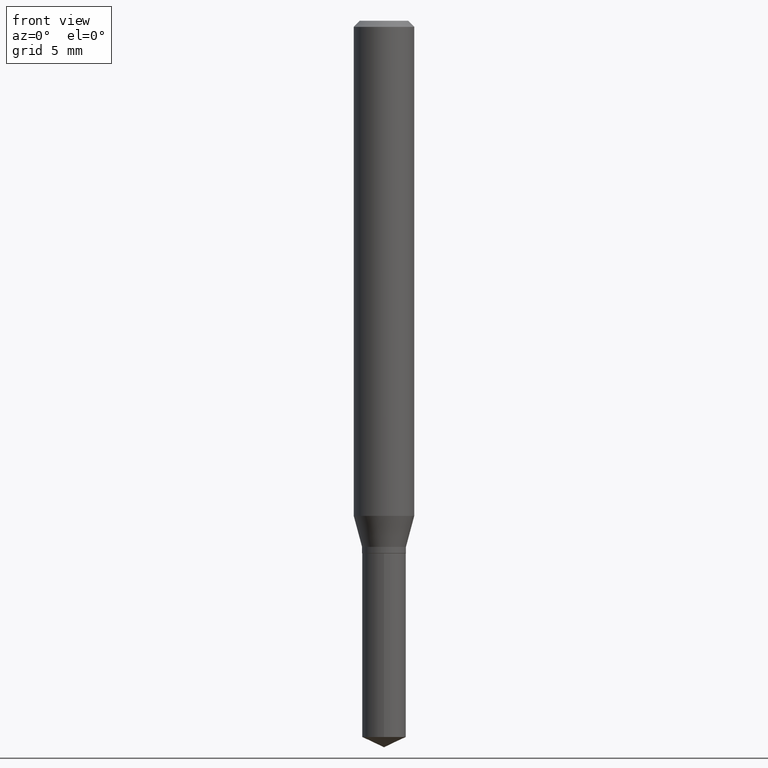
[diagram: clean part render]
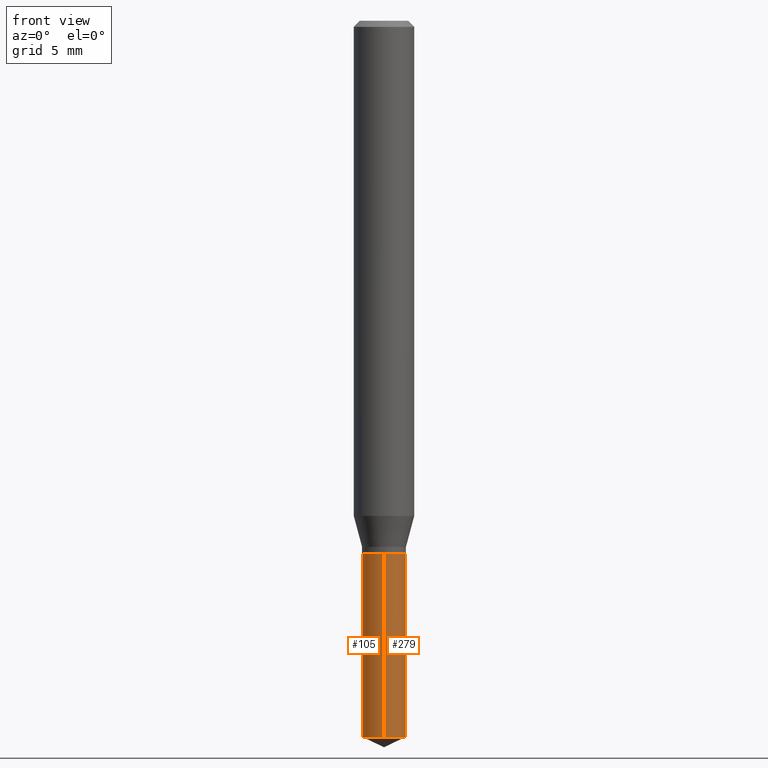
[diagram: same view with one multi-face feature highlighted, each face labeled with its STEP entity id]
A machine part, front view. The highlighted faces form ONE feature: a constant-radius fillet chain: 2 tangent blend faces with common blend radius 1.1506 mm. The faces share edges in the B-rep.
Their STEP definitions:
[1] entity #279 (Cylinder):
#5 = CARTESIAN_POINT ( 'NONE',  ( 3.218758592993522054E-16, 0.04529999999999615584, -1.100000000000000089 ) ) ;
#6 = VERTEX_POINT ( 'NONE', #390 ) ;
#55 = VECTOR ( 'NONE', #302, 39.37007874015748143 ) ;
#63 = DIRECTION ( 'NONE',  ( -2.445399690415121530E-29, 3.491580316559632610E-15, 1.000000000000000000 ) ) ;
#67 = DIRECTION ( 'NONE',  ( -6.982962677686266711E-15, -1.000000000000000000, 6.030569522437666757E-15 ) ) ;
#68 = EDGE_CURVE ( 'NONE', #298, #128, #152, .T. ) ;
#69 = DIRECTION ( 'NONE',  ( -6.982962677686266711E-15, -1.000000000000000000, 3.015284761218833379E-15 ) ) ;
#116 = LINE ( 'NONE', #5, #306 ) ;
#118 = EDGE_CURVE ( 'NONE', #291, #6, #406, .T. ) ;
#128 = VERTEX_POINT ( 'NONE', #311 ) ;
#152 = CIRCLE ( 'NONE', #415, 0.04529999999999999999 ) ;
#180 = CARTESIAN_POINT ( 'NONE',  ( 2.690015686803650369E-29, -3.840629472727460101E-15, -1.100000000000000089 ) ) ;
#203 = DIRECTION ( 'NONE',  ( -2.445399690415121810E-29, 3.491580316559632610E-15, 1.000000000000000000 ) ) ;
#211 = FACE_OUTER_BOUND ( 'NONE', #487, .T. ) ;
#229 = LINE ( 'NONE', #240, #55 ) ;
#239 = CARTESIAN_POINT ( 'NONE',  ( 2.690015686803650369E-29, -3.840629472727460101E-15, -1.100000000000000089 ) ) ;
#240 = CARTESIAN_POINT ( 'NONE',  ( -3.163282092991610146E-16, -0.04530000000000384414, -1.099999999999999867 ) ) ;
#255 = ORIENTED_EDGE ( 'NONE', *, *, #68, .F. ) ;
#279 = ADVANCED_FACE ( 'NONE', ( #211 ), #286, .T. ) ;
#286 = CYLINDRICAL_SURFACE ( 'NONE', #320, 0.04529999999999999999 ) ;
#291 = VERTEX_POINT ( 'NONE', #326 ) ;
#298 = VERTEX_POINT ( 'NONE', #324 ) ;
#302 = DIRECTION ( 'NONE',  ( -2.445399690415121810E-29, 3.491580316559632610E-15, 1.000000000000000000 ) ) ;
#306 = VECTOR ( 'NONE', #203, 39.37007874015748143 ) ;
#307 = ORIENTED_EDGE ( 'NONE', *, *, #470, .F. ) ;
#311 = CARTESIAN_POINT ( 'NONE',  ( 3.218758592993615238E-16, 0.04529999999999615584, -1.100000000000000089 ) ) ;
#320 = AXIS2_PLACEMENT_3D ( 'NONE', #180, #331, #69 ) ;
#324 = CARTESIAN_POINT ( 'NONE',  ( -3.163282092991610146E-16, -0.04530000000000384414, -1.099999999999999867 ) ) ;
#326 = CARTESIAN_POINT ( 'NONE',  ( -3.163282092991516468E-16, -0.04530000000000517640, -1.478876263085578513 ) ) ;
#331 = DIRECTION ( 'NONE',  ( -2.445399690415121530E-29, 3.491580316559632610E-15, 1.000000000000000000 ) ) ;
#350 = CARTESIAN_POINT ( 'NONE',  ( 3.616519583258762254E-29, -5.163506375328735718E-15, -1.478876263085578735 ) ) ;
#390 = CARTESIAN_POINT ( 'NONE',  ( 3.218758592993615238E-16, 0.04529999999999483051, -1.478876263085578957 ) ) ;
#400 = DIRECTION ( 'NONE',  ( -2.445399690415121530E-29, 3.491580316559632610E-15, 1.000000000000000000 ) ) ;
#406 = CIRCLE ( 'NONE', #489, 0.04529999999999999999 ) ;
#415 = AXIS2_PLACEMENT_3D ( 'NONE', #239, #63, #438 ) ;
#425 = ORIENTED_EDGE ( 'NONE', *, *, #461, .T. ) ;
#438 = DIRECTION ( 'NONE',  ( -6.982962677686266711E-15, -1.000000000000000000, 3.015284761218833379E-15 ) ) ;
#461 = EDGE_CURVE ( 'NONE', #6, #128, #116, .T. ) ;
#468 = ORIENTED_EDGE ( 'NONE', *, *, #118, .T. ) ;
#470 = EDGE_CURVE ( 'NONE', #291, #298, #229, .T. ) ;
#487 = EDGE_LOOP ( 'NONE', ( #468, #425, #255, #307 ) ) ;
#489 = AXIS2_PLACEMENT_3D ( 'NONE', #350, #400, #67 ) ;
[2] entity #105 (Cylinder):
#5 = CARTESIAN_POINT ( 'NONE',  ( 3.218758592993522054E-16, 0.04529999999999615584, -1.100000000000000089 ) ) ;
#6 = VERTEX_POINT ( 'NONE', #390 ) ;
#41 = CARTESIAN_POINT ( 'NONE',  ( 2.690015686803650369E-29, -3.840629472727460101E-15, -1.100000000000000089 ) ) ;
#42 = EDGE_LOOP ( 'NONE', ( #309, #269, #197, #213 ) ) ;
#55 = VECTOR ( 'NONE', #302, 39.37007874015748143 ) ;
#59 = CARTESIAN_POINT ( 'NONE',  ( 3.616519583258762254E-29, -5.163506375328735718E-15, -1.478876263085578735 ) ) ;
#90 = EDGE_CURVE ( 'NONE', #6, #291, #107, .T. ) ;
#96 = DIRECTION ( 'NONE',  ( -2.445399690415121530E-29, 3.491580316559632610E-15, 1.000000000000000000 ) ) ;
#98 = CYLINDRICAL_SURFACE ( 'NONE', #388, 0.04529999999999999999 ) ;
#105 = ADVANCED_FACE ( 'NONE', ( #282 ), #98, .T. ) ;
#107 = CIRCLE ( 'NONE', #441, 0.04529999999999999999 ) ;
#116 = LINE ( 'NONE', #5, #306 ) ;
#128 = VERTEX_POINT ( 'NONE', #311 ) ;
#133 = CARTESIAN_POINT ( 'NONE',  ( 2.690015686803650369E-29, -3.840629472727460101E-15, -1.100000000000000089 ) ) ;
#197 = ORIENTED_EDGE ( 'NONE', *, *, #470, .T. ) ;
#203 = DIRECTION ( 'NONE',  ( -2.445399690415121810E-29, 3.491580316559632610E-15, 1.000000000000000000 ) ) ;
#207 = DIRECTION ( 'NONE',  ( -6.982962677686266711E-15, -1.000000000000000000, 3.015284761218833379E-15 ) ) ;
#213 = ORIENTED_EDGE ( 'NONE', *, *, #373, .F. ) ;
#229 = LINE ( 'NONE', #240, #55 ) ;
#240 = CARTESIAN_POINT ( 'NONE',  ( -3.163282092991610146E-16, -0.04530000000000384414, -1.099999999999999867 ) ) ;
#246 = DIRECTION ( 'NONE',  ( -2.445399690415121530E-29, 3.491580316559632610E-15, 1.000000000000000000 ) ) ;
#269 = ORIENTED_EDGE ( 'NONE', *, *, #90, .T. ) ;
#273 = DIRECTION ( 'NONE',  ( -6.982962677686266711E-15, -1.000000000000000000, 3.015284761218833379E-15 ) ) ;
#282 = FACE_OUTER_BOUND ( 'NONE', #42, .T. ) ;
#291 = VERTEX_POINT ( 'NONE', #326 ) ;
#298 = VERTEX_POINT ( 'NONE', #324 ) ;
#302 = DIRECTION ( 'NONE',  ( -2.445399690415121810E-29, 3.491580316559632610E-15, 1.000000000000000000 ) ) ;
#306 = VECTOR ( 'NONE', #203, 39.37007874015748143 ) ;
#309 = ORIENTED_EDGE ( 'NONE', *, *, #461, .F. ) ;
#311 = CARTESIAN_POINT ( 'NONE',  ( 3.218758592993615238E-16, 0.04529999999999615584, -1.100000000000000089 ) ) ;
#324 = CARTESIAN_POINT ( 'NONE',  ( -3.163282092991610146E-16, -0.04530000000000384414, -1.099999999999999867 ) ) ;
#326 = CARTESIAN_POINT ( 'NONE',  ( -3.163282092991516468E-16, -0.04530000000000517640, -1.478876263085578513 ) ) ;
#355 = DIRECTION ( 'NONE',  ( -6.982962677686266711E-15, -1.000000000000000000, 6.030569522437666757E-15 ) ) ;
#359 = DIRECTION ( 'NONE',  ( -2.445399690415121530E-29, 3.491580316559632610E-15, 1.000000000000000000 ) ) ;
#373 = EDGE_CURVE ( 'NONE', #128, #298, #389, .T. ) ;
#388 = AXIS2_PLACEMENT_3D ( 'NONE', #133, #246, #207 ) ;
#389 = CIRCLE ( 'NONE', #440, 0.04529999999999999999 ) ;
#390 = CARTESIAN_POINT ( 'NONE',  ( 3.218758592993615238E-16, 0.04529999999999483051, -1.478876263085578957 ) ) ;
#440 = AXIS2_PLACEMENT_3D ( 'NONE', #41, #96, #273 ) ;
#441 = AXIS2_PLACEMENT_3D ( 'NONE', #59, #359, #355 ) ;
#461 = EDGE_CURVE ( 'NONE', #6, #128, #116, .T. ) ;
#470 = EDGE_CURVE ( 'NONE', #291, #298, #229, .T. ) ;